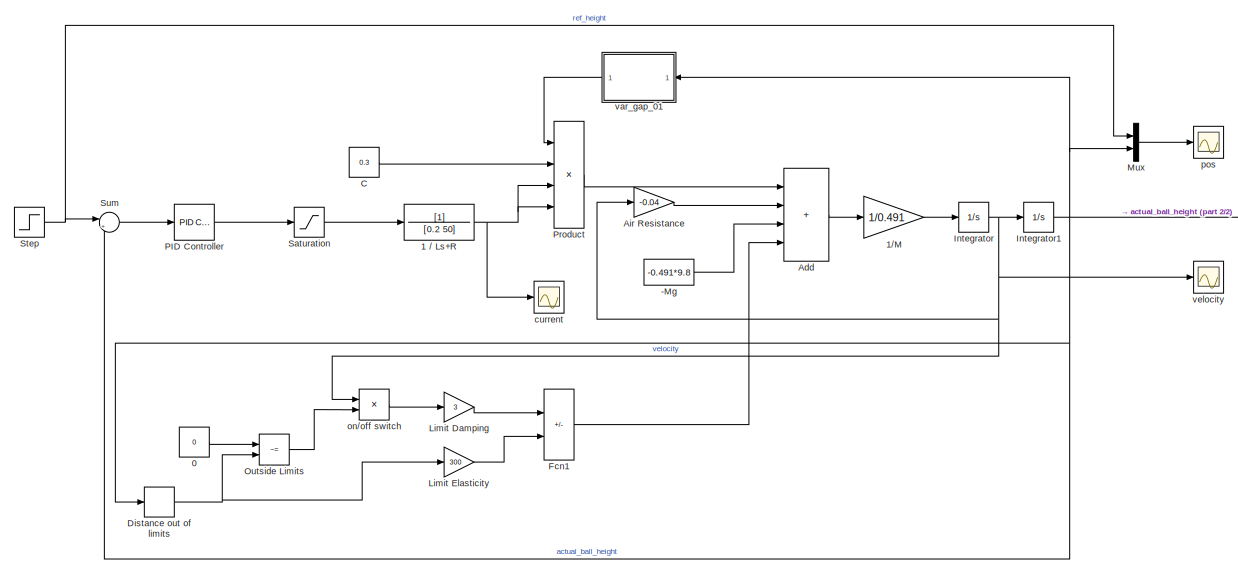
[diagram: root canvas - part 1/2, center side, full height]
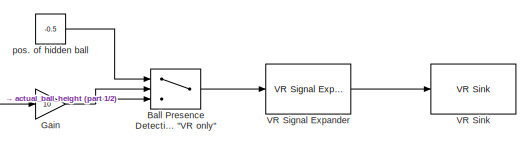
[diagram: root canvas - part 2/2, middle right region]
MODEL slx_d7fc28f93e95
KIND model
CONFIG AbsTol = auto
CONFIG EnableMultiTasking = off
CONFIG FixedStep = auto
CONFIG MaxStep = auto
CONFIG MinStep = auto
CONFIG RelTol = 1e-3
CONFIG SampleTimeConstraint = Unconstrained
CONFIG SolverName = VariableStepAuto
CONFIG StartTime = 0.0
CONFIG StopTime = 10.0
BLOCK [Constant] -Mg
  Value = -0.491*9.8
BLOCK [Constant] 0
  Value = 0
BLOCK [TransferFcn] 1 // Ls+R
  Denominator = [0.2 50]
BLOCK [Gain] 1//M
  Gain = 1/0.491
BLOCK [Sum] Add
  IconShape = rectangular
  Inputs = ++++
  Ports = [4, 1]
BLOCK [Gain] Air Resistance
  Gain = -0.04
  OutDataTypeStr = double
BLOCK [Switch] Ball Presence Detection Value > Threshold = Ball Not Present 1 for "VR only"
  SaturateOnIntegerOverflow = off
  Threshold = 1
  ZeroCross = off
BLOCK [Constant] C
  Value = 0.3
BLOCK [DeadZone] Distance out of limits
  LowerValue = 0.0002
  UpperValue = 0.0998
  ZeroCross = off
BLOCK [Sum] Fcn1
  IconShape = rectangular
  InputSameDT = on
  Inputs = --
  OutDataTypeStr = double
  Ports = [2, 1]
  SaturateOnIntegerOverflow = on
BLOCK [Gain] Gain
  Gain = 10
BLOCK [Integrator] Integrator
  Ports = [1, 1]
  ZeroCross = off
BLOCK [Integrator] Integrator1
  InitialCondition = 0.0001
  LimitOutput = on
  LowerSaturationLimit = 0
  Ports = [1, 1]
  UpperSaturationLimit = 0.1
  ZeroCross = off
BLOCK [Gain] Limit Damping
  Gain = 3
  OutDataTypeStr = double
  ParamDataTypeStr = Inherit: Same as input
  SaturateOnIntegerOverflow = on
BLOCK [Gain] Limit Elasticity
  Gain = 300
  OutDataTypeStr = double
  ParamDataTypeStr = Inherit: Same as input
  SaturateOnIntegerOverflow = on
BLOCK [Mux] Mux
  DisplayOption = bar
  Inputs = 2
  Ports = [2, 1]
BLOCK [RelationalOperator] Outside Limits
  Operator = ~=
  Ports = [2, 1]
  ZeroCross = off
BLOCK [Reference] PID Controller  REF=pid_lib/PID Controller
  Ports = [1, 1]
  SourceBlock = pid_lib/PID Controller
  SourceProductBaseCode = SL
  SourceType = PID 1dof
BLOCK [Product] Product
  Inputs = 4
  OutDataTypeStr = double
  Ports = [4, 1]
BLOCK [Saturate] Saturation
  LowerLimit = 0
  UpperLimit = 200
  ZeroCross = off
BLOCK [Step] Step
  After = 0.08
  SampleTime = 0
  Time = 0
  ZeroCross = off
BLOCK [Sum] Sum
  Inputs = |+-
  Ports = [2, 1]
BLOCK [Reference] VR Signal Expander  REF=vrlib/VR Signal Expander
  Ports = [1, 1]
  SourceBlock = vrlib/VR Signal Expander
  SourceProductBaseCode = SL
  SourceType = VR Signal Expander
BLOCK [Reference] VR Sink  REF=vrlib/VR Sink
  InstantiateOnLoad = on
  Ports = [1]
  SourceBlock = vrlib/VR Sink
  SourceProductBaseCode = SL
  SourceType = Virtual Reality Sink
BLOCK [Scope] current
  Floating = off
  NumInputPorts = 1
  Ports = [1]
  ScopeSpecificationString = Simulink.scopes.TimeScopeBlockCfg('CurrentConfiguration', extmgr.ConfigurationSet(extmgr.Configuration('Core','General UI',true),extmgr.Configuration('Core','Source UI',true),extmgr.Configuration('Sources','WiredSimulink',true,'DataLoggingVariableName','ScopeData1'),extmgr.Configuration('Visuals','Time Domain',true,'SerializedDisplays',{struct('MinYLimReal','-0.49323','MaxYLimReal','4.43909','YLab...<+1667ch>
BLOCK [Product] on//off switch
  OutDataTypeStr = double
  Ports = [2, 1]
  SaturateOnIntegerOverflow = on
BLOCK [Scope] pos
  Floating = off
  NumInputPorts = 1
  Ports = [1]
  ScopeSpecificationString = Simulink.scopes.TimeScopeBlockCfg('CurrentConfiguration', extmgr.ConfigurationSet(extmgr.Configuration('Core','General UI',true),extmgr.Configuration('Core','Source UI',true),extmgr.Configuration('Sources','WiredSimulink',true),extmgr.Configuration('Visuals','Time Domain',true,'SerializedDisplays',{struct('MinYLimReal','-0.01241','MaxYLimReal','0.11249','YLabelReal','','MinYLimMag','0.00000','MaxY...<+1378ch>
BLOCK [Constant] pos. of hidden ball
  Value = -0.5
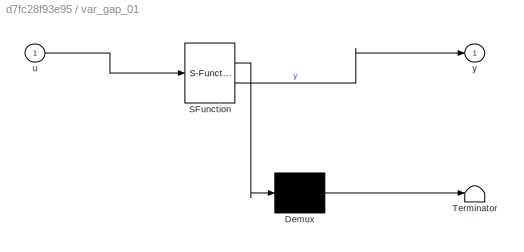
BLOCK [SubSystem] var_gap_01
  ErrorFcn = Stateflow.Translate.translate
  PermitHierarchicalResolution = ExplicitOnly
  Ports = [1, 1]
  RequestExecContextInheritance = off
  SFBlockType = MATLAB Function
  TreatAsAtomicUnit = on
BLOCK [Demux] var_gap_01/ Demux 
  Outputs = 1
  Ports = [1, 1]
BLOCK [S-Function] var_gap_01/ SFunction 
  EnableBusSupport = on
  FunctionName = sf_sfun
  PortCounts = [1 2]
  Ports = [1, 2]
  SFcnIsStateOwnerBlock = off
  SFunctionDeploymentMode = off
  Tag = Stateflow S-Function 2
BLOCK [Terminator] var_gap_01/ Terminator 
BLOCK [Inport] var_gap_01/u
BLOCK [Outport] var_gap_01/y
  VectorParamsAs1DForOutWhenUnconnected = off
BLOCK [Scope] velocity
  Floating = off
  NumInputPorts = 1
  Ports = [1]
  ScopeSpecificationString = Simulink.scopes.TimeScopeBlockCfg('CurrentConfiguration', extmgr.ConfigurationSet(extmgr.Configuration('Core','General UI',true),extmgr.Configuration('Core','Source UI',true),extmgr.Configuration('Sources','WiredSimulink',true,'DataLoggingVariableName','ScopeData2'),extmgr.Configuration('Visuals','Time Domain',true,'SerializedDisplays',{struct('MinYLimReal','-131.40203','MaxYLimReal','1179.84986',...<+1383ch>
LINE -Mg:1 -> Add:3
LINE 0:1 -> Outside Limits:1
NET 1 // Ls+R:1 -> Product:3, Product:4, current:1
LINE 1//M:1 -> Integrator:1
LINE Add:1 -> 1//M:1
LINE Air Resistance:1 -> Add:2
LINE Ball Presence Detection Value > Threshold = Ball Not Present 1 for "VR only":1 -> VR Signal Expander:1
LINE C:1 -> Product:2
NET Distance out of limits:1 -> Limit Elasticity:1, Outside Limits:2
LINE Fcn1:1 -> Add:4
NET Gain:1 -> Ball Presence Detection Value > Threshold = Ball Not Present 1 for "VR only":2, Ball Presence Detection Value > Threshold = Ball Not Present 1 for "VR only":3
NET Integrator1:1 -> Distance out of limits:1, Gain:1, Mux:2, Sum:2, var_gap_01:1
NET Integrator:1 -> Air Resistance:1, Integrator1:1, on//off switch:1, velocity:1
LINE Limit Damping:1 -> Fcn1:1
LINE Limit Elasticity:1 -> Fcn1:2
LINE Mux:1 -> pos:1
LINE Outside Limits:1 -> on//off switch:2
LINE PID Controller:1 -> Saturation:1
LINE Product:1 -> Add:1
LINE Saturation:1 -> 1 // Ls+R:1
NET Step:1 -> Mux:1, Sum:1
LINE Sum:1 -> PID Controller:1
LINE VR Signal Expander:1 -> VR Sink:1
LINE on//off switch:1 -> Limit Damping:1
LINE pos. of hidden ball:1 -> Ball Presence Detection Value > Threshold = Ball Not Present 1 for "VR only":1
LINE var_gap_01:1 -> Product:1
note: NET lines group one-source signal fan-out (src -> all destinations, sorted); 1:1 wires keep LINE
CHART var_gap_01 states=1 transitions=1
  STATE_LABEL 'eML_blk_kernel()'
  STATE_LABEL 'SCRIPT:\nfunction y = fcn(u)\n%#codegen\n\ny = 1 / (0.1001 - u);\n'
CHART  states=0 transitions=0
